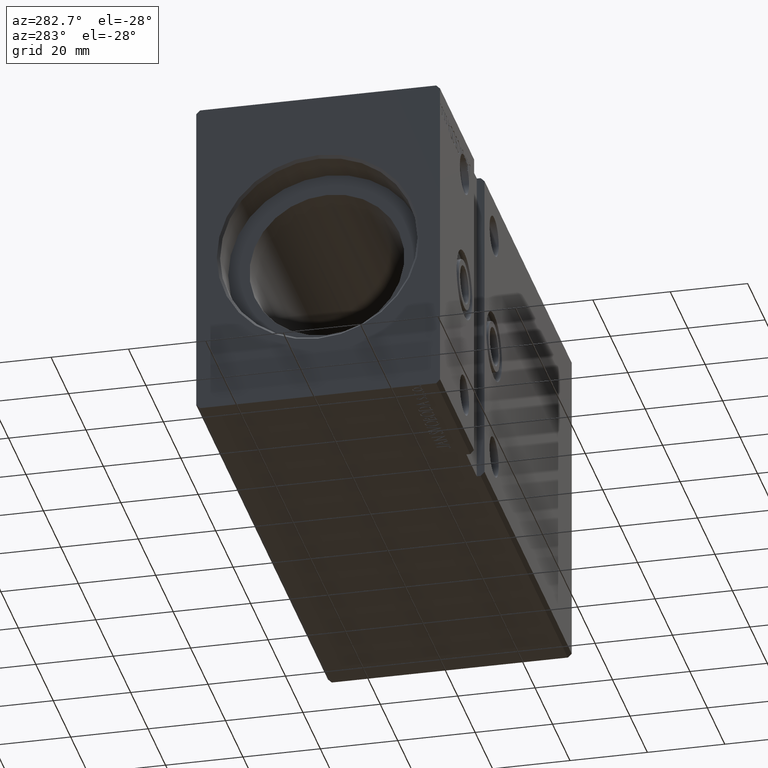
[diagram: clean part render]
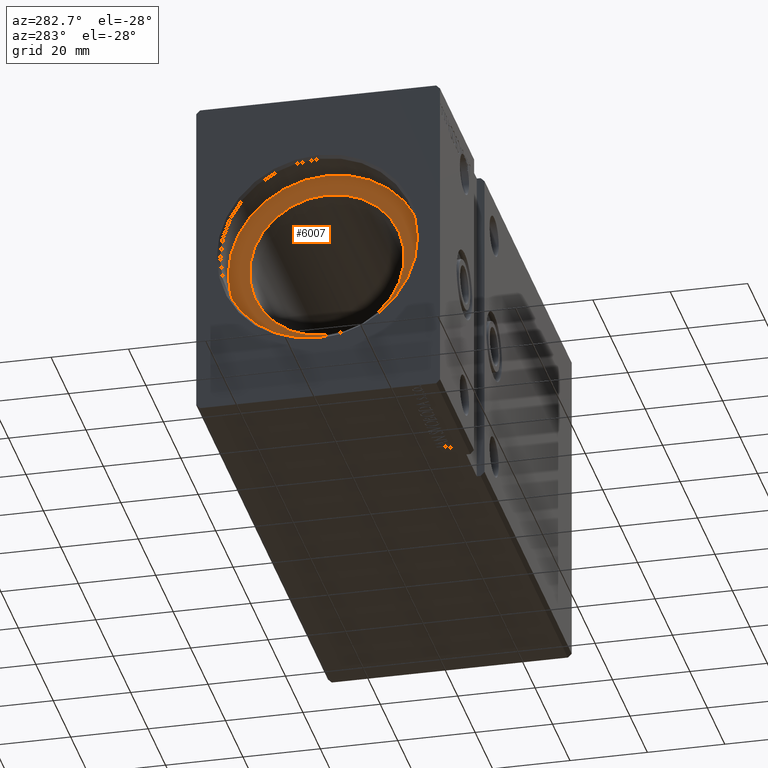
[diagram: same view with one face highlighted and labeled with its STEP entity id]
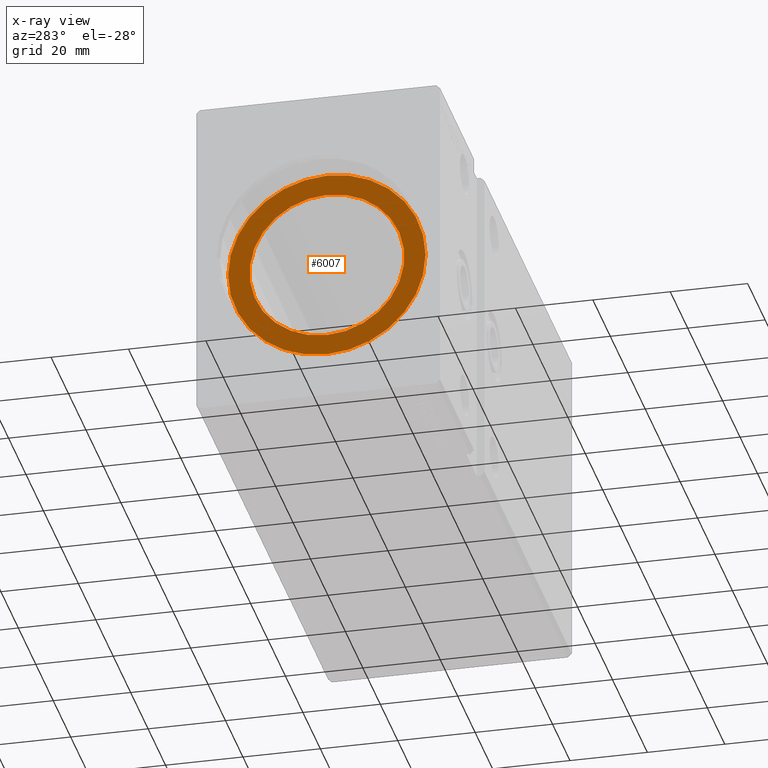
[diagram: x-ray of the same camera — body ghosted, the highlighted face saturated]
A machine part, auxiliary view. The second image highlights one B-rep face of the part: STEP entity #6007.
The next image is the same camera in x-ray: the body ghosted, the highlighted face saturated — about 0% of this face is hidden behind the body in this view.
In plain terms, the highlighted planar face has unit normal (-1, 0, 0).
Its self-contained STEP definition (entity closure, byte-faithful):
#704 = CARTESIAN_POINT ( 'NONE',  ( 10.00000000000000000, 0.000000000000000000, 0.000000000000000000 ) ) ;
#4604 = FACE_BOUND ( 'NONE', #16525, .T. ) ;
#5312 = CARTESIAN_POINT ( 'NONE',  ( 10.00000000000000000, 0.000000000000000000, 0.000000000000000000 ) ) ;
#6007 = ADVANCED_FACE ( 'NONE', ( #4604, #32151 ), #25992, .T. ) ;
#6280 = CARTESIAN_POINT ( 'NONE',  ( 10.00000000000000888, 0.000000000000000000, 0.000000000000000000 ) ) ;
#7289 = VERTEX_POINT ( 'NONE', #20520 ) ;
#9299 = EDGE_CURVE ( 'NONE', #26120, #7289, #10473, .T. ) ;
#9343 = CARTESIAN_POINT ( 'NONE',  ( 10.00000000000000888, 0.000000000000000000, 0.000000000000000000 ) ) ;
#9436 = CIRCLE ( 'NONE', #36358, 20.00000000000000000 ) ;
#10162 = DIRECTION ( 'NONE',  ( 0.000000000000000000, 0.000000000000000000, 1.000000000000000000 ) ) ;
#10473 = CIRCLE ( 'NONE', #12425, 20.00000000000000000 ) ;
#12374 = CARTESIAN_POINT ( 'NONE',  ( 10.00000000000000888, 2.449293598294706513E-15, -20.00000000000000000 ) ) ;
#12425 = AXIS2_PLACEMENT_3D ( 'NONE', #9343, #15710, #12619 ) ;
#12619 = DIRECTION ( 'NONE',  ( 0.000000000000000000, 0.000000000000000000, 1.000000000000000000 ) ) ;
#15353 = AXIS2_PLACEMENT_3D ( 'NONE', #25644, #31194, #15981 ) ;
#15710 = DIRECTION ( 'NONE',  ( -1.000000000000000000, 0.000000000000000000, 0.000000000000000000 ) ) ;
#15981 = DIRECTION ( 'NONE',  ( 0.000000000000000000, 0.000000000000000000, 1.000000000000000000 ) ) ;
#16525 = EDGE_LOOP ( 'NONE', ( #24768, #39318 ) ) ;
#16527 = DIRECTION ( 'NONE',  ( -1.000000000000000000, 0.000000000000000000, 0.000000000000000000 ) ) ;
#18187 = VERTEX_POINT ( 'NONE', #37889 ) ;
#18410 = DIRECTION ( 'NONE',  ( 0.000000000000000000, 0.000000000000000000, 1.000000000000000000 ) ) ;
#20520 = CARTESIAN_POINT ( 'NONE',  ( 10.00000000000000888, 0.000000000000000000, 20.00000000000000000 ) ) ;
#20596 = AXIS2_PLACEMENT_3D ( 'NONE', #5312, #27697, #33670 ) ;
#21031 = ORIENTED_EDGE ( 'NONE', *, *, #22810, .T. ) ;
#22810 = EDGE_CURVE ( 'NONE', #18187, #30977, #34375, .T. ) ;
#23886 = EDGE_CURVE ( 'NONE', #30977, #18187, #33097, .T. ) ;
#24768 = ORIENTED_EDGE ( 'NONE', *, *, #36368, .F. ) ;
#25644 = CARTESIAN_POINT ( 'NONE',  ( 10.00000000000000000, 0.000000000000000000, 0.000000000000000000 ) ) ;
#25992 = PLANE ( 'NONE',  #32096 ) ;
#26120 = VERTEX_POINT ( 'NONE', #12374 ) ;
#27697 = DIRECTION ( 'NONE',  ( -1.000000000000000000, 0.000000000000000000, 0.000000000000000000 ) ) ;
#28263 = DIRECTION ( 'NONE',  ( -1.000000000000000000, 0.000000000000000000, 0.000000000000000000 ) ) ;
#30977 = VERTEX_POINT ( 'NONE', #31609 ) ;
#31194 = DIRECTION ( 'NONE',  ( -1.000000000000000000, 0.000000000000000000, 0.000000000000000000 ) ) ;
#31609 = CARTESIAN_POINT ( 'NONE',  ( 10.00000000000000000, 0.000000000000000000, 25.50000000000000000 ) ) ;
#32096 = AXIS2_PLACEMENT_3D ( 'NONE', #704, #16527, #10162 ) ;
#32151 = FACE_OUTER_BOUND ( 'NONE', #40026, .T. ) ;
#33097 = CIRCLE ( 'NONE', #15353, 25.50000000000000000 ) ;
#33670 = DIRECTION ( 'NONE',  ( 0.000000000000000000, 0.000000000000000000, 1.000000000000000000 ) ) ;
#34375 = CIRCLE ( 'NONE', #20596, 25.50000000000000000 ) ;
#36358 = AXIS2_PLACEMENT_3D ( 'NONE', #6280, #28263, #18410 ) ;
#36368 = EDGE_CURVE ( 'NONE', #7289, #26120, #9436, .T. ) ;
#37889 = CARTESIAN_POINT ( 'NONE',  ( 10.00000000000000000, 3.122849337825750222E-15, -25.50000000000000000 ) ) ;
#38603 = ORIENTED_EDGE ( 'NONE', *, *, #23886, .T. ) ;
#39318 = ORIENTED_EDGE ( 'NONE', *, *, #9299, .F. ) ;
#40026 = EDGE_LOOP ( 'NONE', ( #38603, #21031 ) ) ;